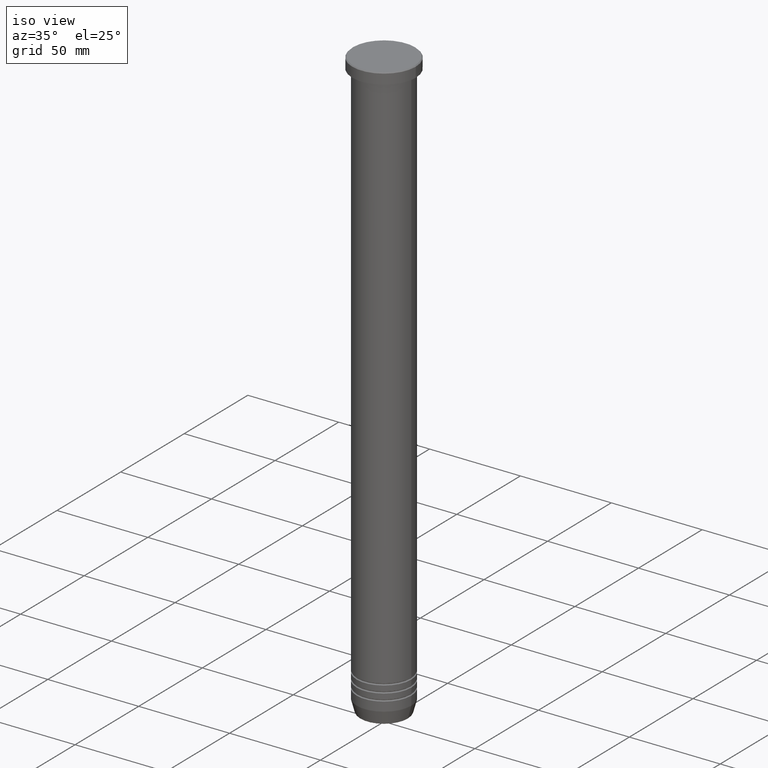
[diagram: clean part render]
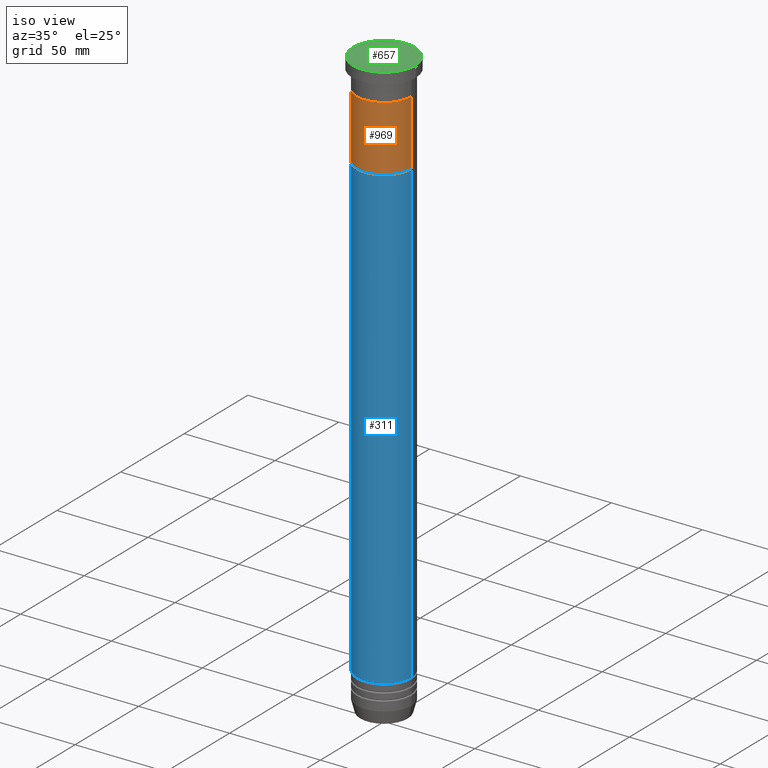
[diagram: same view with three faces highlighted in distinct colors, each labeled with its STEP entity id]
A machine part, iso view with three faces highlighted in distinct colors.
Their STEP definitions:

[orange] entity #969 — the highlighted cylindrical surface (edge-blend (fillet) strip) has radius 15 mm, axis along (-0, -0, 1).
#63 = DIRECTION ( 'NONE',  ( -0.000000000000000000, -0.000000000000000000, 1.000000000000000000 ) ) ;
#91 = CARTESIAN_POINT ( 'NONE',  ( 0.000000000000000000, 0.000000000000000000, -52.00000000000000000 ) ) ;
#142 = CIRCLE ( 'NONE', #387, 15.00000000000000000 ) ;
#150 = EDGE_CURVE ( 'NONE', #1075, #341, #142, .T. ) ;
#152 = ORIENTED_EDGE ( 'NONE', *, *, #351, .T. ) ;
#192 = ORIENTED_EDGE ( 'NONE', *, *, #150, .F. ) ;
#194 = CARTESIAN_POINT ( 'NONE',  ( -15.00000000000000000, 1.836970198721029589E-15, -16.00000000000000000 ) ) ;
#202 = VERTEX_POINT ( 'NONE', #194 ) ;
#205 = CARTESIAN_POINT ( 'NONE',  ( 0.000000000000000000, 0.000000000000000000, -52.00000000000000000 ) ) ;
#220 = CARTESIAN_POINT ( 'NONE',  ( 0.000000000000000000, 0.000000000000000000, -16.00000000000000000 ) ) ;
#239 = VECTOR ( 'NONE', #959, 1000.000000000000000 ) ;
#246 = LINE ( 'NONE', #763, #408 ) ;
#269 = AXIS2_PLACEMENT_3D ( 'NONE', #205, #508, #860 ) ;
#314 = VERTEX_POINT ( 'NONE', #739 ) ;
#341 = VERTEX_POINT ( 'NONE', #858 ) ;
#351 = EDGE_CURVE ( 'NONE', #1075, #314, #246, .T. ) ;
#360 = EDGE_LOOP ( 'NONE', ( #954, #192, #152, #950 ) ) ;
#387 = AXIS2_PLACEMENT_3D ( 'NONE', #91, #452, #434 ) ;
#392 = CYLINDRICAL_SURFACE ( 'NONE', #269, 15.00000000000000000 ) ;
#408 = VECTOR ( 'NONE', #63, 1000.000000000000000 ) ;
#434 = DIRECTION ( 'NONE',  ( -1.000000000000000000, 0.000000000000000000, 0.000000000000000000 ) ) ;
#449 = EDGE_CURVE ( 'NONE', #341, #202, #604, .T. ) ;
#452 = DIRECTION ( 'NONE',  ( 0.000000000000000000, 0.000000000000000000, -1.000000000000000000 ) ) ;
#508 = DIRECTION ( 'NONE',  ( -0.000000000000000000, -0.000000000000000000, 1.000000000000000000 ) ) ;
#518 = AXIS2_PLACEMENT_3D ( 'NONE', #220, #1102, #1002 ) ;
#604 = LINE ( 'NONE', #976, #239 ) ;
#739 = CARTESIAN_POINT ( 'NONE',  ( 15.00000000000000000, 0.000000000000000000, -16.00000000000000000 ) ) ;
#748 = FACE_OUTER_BOUND ( 'NONE', #360, .T. ) ;
#757 = CARTESIAN_POINT ( 'NONE',  ( 15.00000000000000000, 0.000000000000000000, -52.00000000000000000 ) ) ;
#763 = CARTESIAN_POINT ( 'NONE',  ( 15.00000000000000000, 0.000000000000000000, -52.00000000000000000 ) ) ;
#858 = CARTESIAN_POINT ( 'NONE',  ( -15.00000000000000000, 1.836970198721029589E-15, -52.00000000000000000 ) ) ;
#860 = DIRECTION ( 'NONE',  ( 1.000000000000000000, 0.000000000000000000, 0.000000000000000000 ) ) ;
#862 = CIRCLE ( 'NONE', #518, 15.00000000000000000 ) ;
#950 = ORIENTED_EDGE ( 'NONE', *, *, #1064, .T. ) ;
#954 = ORIENTED_EDGE ( 'NONE', *, *, #449, .F. ) ;
#959 = DIRECTION ( 'NONE',  ( -0.000000000000000000, -0.000000000000000000, 1.000000000000000000 ) ) ;
#969 = ADVANCED_FACE ( 'NONE', ( #748 ), #392, .T. ) ;
#976 = CARTESIAN_POINT ( 'NONE',  ( -15.00000000000000000, 1.836970198721029589E-15, -52.00000000000000000 ) ) ;
#1002 = DIRECTION ( 'NONE',  ( -1.000000000000000000, 0.000000000000000000, 0.000000000000000000 ) ) ;
#1064 = EDGE_CURVE ( 'NONE', #314, #202, #862, .T. ) ;
#1075 = VERTEX_POINT ( 'NONE', #757 ) ;
#1102 = DIRECTION ( 'NONE',  ( 0.000000000000000000, 0.000000000000000000, -1.000000000000000000 ) ) ;

[blue] entity #311 — the highlighted cylindrical surface (edge-blend (fillet) strip) has radius 15 mm, axis along (-0, -0, 1).
#4 = VERTEX_POINT ( 'NONE', #547 ) ;
#22 = DIRECTION ( 'NONE',  ( 1.000000000000000000, 0.000000000000000000, 0.000000000000000000 ) ) ;
#85 = VECTOR ( 'NONE', #848, 1000.000000000000000 ) ;
#93 = EDGE_CURVE ( 'NONE', #253, #588, #331, .T. ) ;
#99 = DIRECTION ( 'NONE',  ( -0.000000000000000000, -0.000000000000000000, 1.000000000000000000 ) ) ;
#112 = DIRECTION ( 'NONE',  ( -0.000000000000000000, -0.000000000000000000, 1.000000000000000000 ) ) ;
#127 = CYLINDRICAL_SURFACE ( 'NONE', #780, 14.99999999999999645 ) ;
#161 = EDGE_LOOP ( 'NONE', ( #214, #224, #948, #582 ) ) ;
#214 = ORIENTED_EDGE ( 'NONE', *, *, #1133, .F. ) ;
#219 = DIRECTION ( 'NONE',  ( 1.000000000000000000, 0.000000000000000000, 0.000000000000000000 ) ) ;
#224 = ORIENTED_EDGE ( 'NONE', *, *, #93, .T. ) ;
#229 = EDGE_CURVE ( 'NONE', #4, #1083, #1129, .T. ) ;
#253 = VERTEX_POINT ( 'NONE', #1015 ) ;
#257 = AXIS2_PLACEMENT_3D ( 'NONE', #901, #112, #22 ) ;
#290 = CARTESIAN_POINT ( 'NONE',  ( 0.000000000000000000, 0.000000000000000000, 0.000000000000000000 ) ) ;
#304 = CARTESIAN_POINT ( 'NONE',  ( 0.000000000000000000, 0.000000000000000000, -304.9999999999999432 ) ) ;
#311 = ADVANCED_FACE ( 'NONE', ( #919 ), #127, .T. ) ;
#331 = CIRCLE ( 'NONE', #1060, 14.99999999999999112 ) ;
#413 = LINE ( 'NONE', #702, #85 ) ;
#475 = DIRECTION ( 'NONE',  ( 1.000000000000000000, 0.000000000000000000, 0.000000000000000000 ) ) ;
#486 = EDGE_CURVE ( 'NONE', #588, #1083, #413, .T. ) ;
#547 = CARTESIAN_POINT ( 'NONE',  ( -15.00000000000000000, 1.836970198721029589E-15, -52.00000000000000000 ) ) ;
#582 = ORIENTED_EDGE ( 'NONE', *, *, #229, .F. ) ;
#588 = VERTEX_POINT ( 'NONE', #724 ) ;
#662 = DIRECTION ( 'NONE',  ( -0.000000000000000000, -0.000000000000000000, 1.000000000000000000 ) ) ;
#702 = CARTESIAN_POINT ( 'NONE',  ( 14.99999999999999645, 0.000000000000000000, 0.000000000000000000 ) ) ;
#724 = CARTESIAN_POINT ( 'NONE',  ( 14.99999999999999112, 0.000000000000000000, -304.9999999999999432 ) ) ;
#780 = AXIS2_PLACEMENT_3D ( 'NONE', #290, #1116, #475 ) ;
#848 = DIRECTION ( 'NONE',  ( -0.000000000000000000, -0.000000000000000000, 1.000000000000000000 ) ) ;
#901 = CARTESIAN_POINT ( 'NONE',  ( 0.000000000000000000, 0.000000000000000000, -52.00000000000000000 ) ) ;
#919 = FACE_OUTER_BOUND ( 'NONE', #161, .T. ) ;
#948 = ORIENTED_EDGE ( 'NONE', *, *, #486, .T. ) ;
#1015 = CARTESIAN_POINT ( 'NONE',  ( -14.99999999999999112, 1.836970198721028800E-15, -304.9999999999999432 ) ) ;
#1059 = LINE ( 'NONE', #1070, #1128 ) ;
#1060 = AXIS2_PLACEMENT_3D ( 'NONE', #304, #662, #219 ) ;
#1070 = CARTESIAN_POINT ( 'NONE',  ( -14.99999999999999645, 1.836970198721029194E-15, 0.000000000000000000 ) ) ;
#1083 = VERTEX_POINT ( 'NONE', #1118 ) ;
#1116 = DIRECTION ( 'NONE',  ( -0.000000000000000000, -0.000000000000000000, 1.000000000000000000 ) ) ;
#1118 = CARTESIAN_POINT ( 'NONE',  ( 15.00000000000000000, 0.000000000000000000, -52.00000000000000000 ) ) ;
#1128 = VECTOR ( 'NONE', #99, 1000.000000000000000 ) ;
#1129 = CIRCLE ( 'NONE', #257, 15.00000000000000000 ) ;
#1133 = EDGE_CURVE ( 'NONE', #253, #4, #1059, .T. ) ;

[green] entity #657 — the highlighted planar face has unit normal (0, -0, 1).
#2 = ORIENTED_EDGE ( 'NONE', *, *, #165, .T. ) ;
#68 = CIRCLE ( 'NONE', #601, 17.00000000000000000 ) ;
#80 = CARTESIAN_POINT ( 'NONE',  ( 0.000000000000000000, 0.000000000000000000, 0.000000000000000000 ) ) ;
#109 = DIRECTION ( 'NONE',  ( 1.000000000000000000, 0.000000000000000000, 0.000000000000000000 ) ) ;
#165 = EDGE_CURVE ( 'NONE', #600, #1100, #863, .T. ) ;
#265 = DIRECTION ( 'NONE',  ( -0.000000000000000000, -0.000000000000000000, 1.000000000000000000 ) ) ;
#343 = EDGE_CURVE ( 'NONE', #1100, #600, #68, .T. ) ;
#350 = CARTESIAN_POINT ( 'NONE',  ( 0.000000000000000000, 0.000000000000000000, 0.000000000000000000 ) ) ;
#367 = ORIENTED_EDGE ( 'NONE', *, *, #343, .T. ) ;
#370 = AXIS2_PLACEMENT_3D ( 'NONE', #350, #265, #109 ) ;
#420 = DIRECTION ( 'NONE',  ( -0.000000000000000000, -0.000000000000000000, 1.000000000000000000 ) ) ;
#421 = EDGE_LOOP ( 'NONE', ( #2, #367 ) ) ;
#428 = FACE_OUTER_BOUND ( 'NONE', #421, .T. ) ;
#499 = CARTESIAN_POINT ( 'NONE',  ( -17.00000000000000000, 0.000000000000000000, 0.000000000000000000 ) ) ;
#506 = CARTESIAN_POINT ( 'NONE',  ( 0.000000000000000000, 0.000000000000000000, 0.000000000000000000 ) ) ;
#590 = CARTESIAN_POINT ( 'NONE',  ( 17.00000000000000000, 2.112515728529184067E-15, 0.000000000000000000 ) ) ;
#600 = VERTEX_POINT ( 'NONE', #499 ) ;
#601 = AXIS2_PLACEMENT_3D ( 'NONE', #506, #420, #853 ) ;
#657 = ADVANCED_FACE ( 'NONE', ( #428 ), #697, .T. ) ;
#697 = PLANE ( 'NONE',  #802 ) ;
#775 = DIRECTION ( 'NONE',  ( 0.000000000000000000, -0.000000000000000000, 1.000000000000000000 ) ) ;
#802 = AXIS2_PLACEMENT_3D ( 'NONE', #80, #775, #1135 ) ;
#853 = DIRECTION ( 'NONE',  ( 1.000000000000000000, 0.000000000000000000, 0.000000000000000000 ) ) ;
#863 = CIRCLE ( 'NONE', #370, 17.00000000000000000 ) ;
#1100 = VERTEX_POINT ( 'NONE', #590 ) ;
#1135 = DIRECTION ( 'NONE',  ( 1.000000000000000000, 0.000000000000000000, 0.000000000000000000 ) ) ;